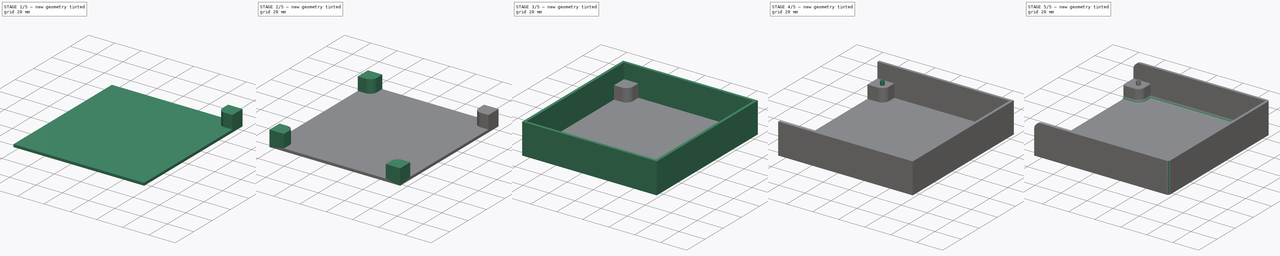
[diagram: build sequence overview — one tinted view per stage of 5, left to right]
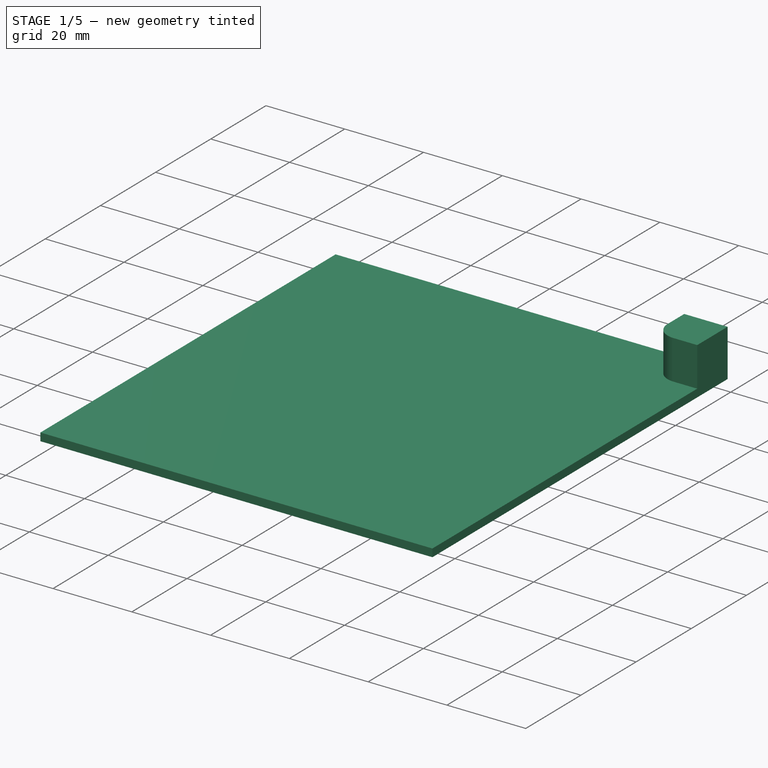
[diagram: stage 1 of 5 — iso view after this stage's code; geometry added in this stage tinted green]
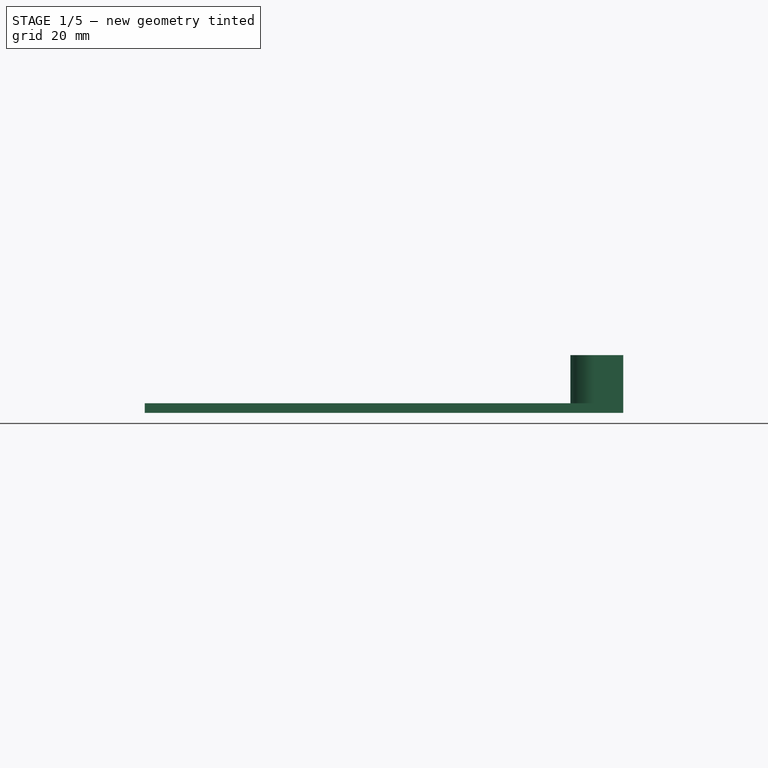
[diagram: stage 1 of 5 — front view after this stage's code; geometry added in this stage tinted green]
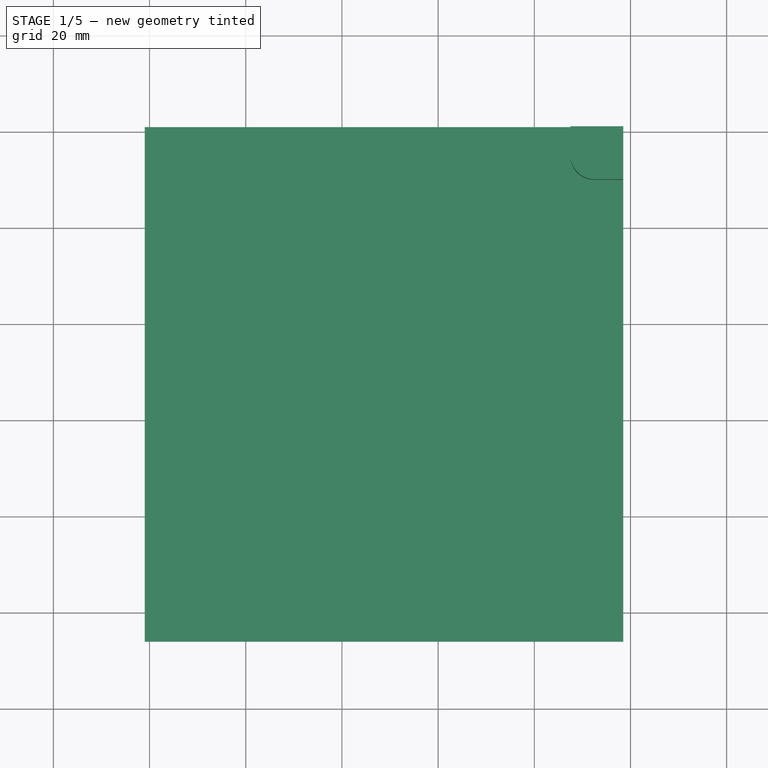
[diagram: stage 1 of 5 — top view after this stage's code; geometry added in this stage tinted green]
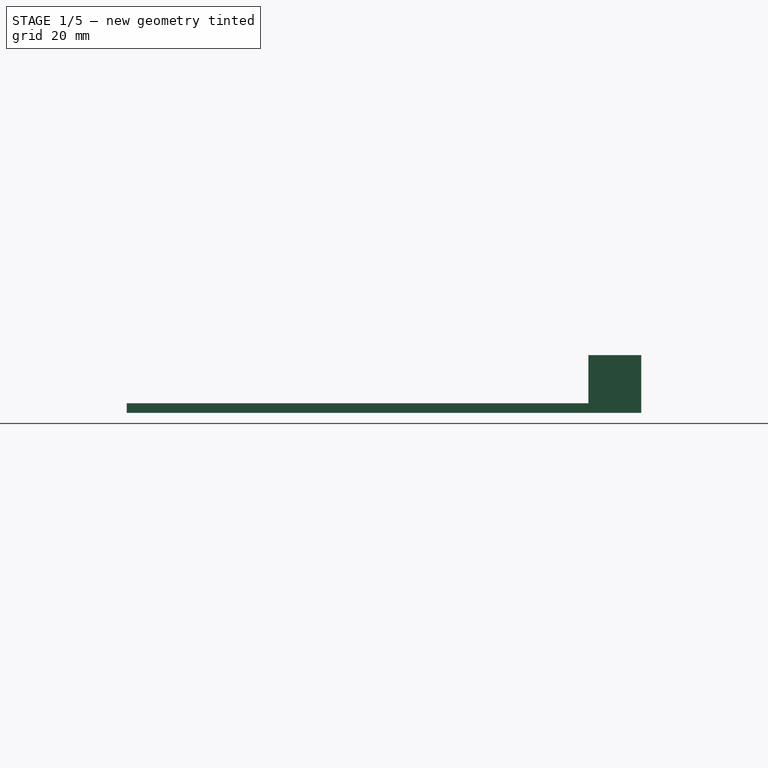
[diagram: stage 1 of 5 — right view after this stage's code; geometry added in this stage tinted green]
FCSTD DOCUMENT  (FreeCAD 1.0RUnknown)
Label: bed
License: All rights reserved
LicenseURL: http://en.wikipedia.org/wiki/All_rights_reserved
objects: Sketcher::SketchObject×7, PartDesign::Pad×5, PartDesign::Mirrored×5, PartDesign::Plane×3, PartDesign::Pocket×3, PartDesign::Fillet×3, PartDesign::Body×2, PartDesign::PolarPattern×2, PartDesign::SubShapeBinder×1, PartDesign::Line×1
note: 68 computed .brp shape members not serialized (recipe doc carries the construction recipe); baked Part::Feature solids carry a one-line shape summary decoded from their .brp

FEATURE [Sketcher::SketchObject] Sketch
  ArcFitTolerance = 1e-06
  AttachmentSupport = -> [XY_Plane]
  FullyConstrained = true
  MakeInternals = false
  MapMode = 5
  sketch-geometry (16):
    g0: LineSegment StartX=0 StartY=0 StartZ=0 EndX=0 EndY=-105 EndZ=0
    g1: LineSegment StartX=0 StartY=-105 StartZ=0 EndX=97.5 EndY=-105 EndZ=0
    g2: LineSegment StartX=97.5 StartY=-105 StartZ=0 EndX=97.5 EndY=0 EndZ=0
    g3: LineSegment StartX=97.5 StartY=0 StartZ=0 EndX=0 EndY=0 EndZ=0
    g4: Circle CenterX=5 CenterY=-5 CenterZ=0 NormalX=0 NormalY=0 NormalZ=1 AngleXU=0 Radius=1.6
    g5: Circle CenterX=92.5 CenterY=-5 CenterZ=0 NormalX=0 NormalY=0 NormalZ=1 AngleXU=0 Radius=1.6
    g6: Circle CenterX=92.5 CenterY=-100 CenterZ=0 NormalX=0 NormalY=0 NormalZ=1 AngleXU=0 Radius=1.6
    g7: Circle CenterX=5 CenterY=-100 CenterZ=0 NormalX=0 NormalY=0 NormalZ=1 AngleXU=0 Radius=1.6
    g8: LineSegment [constr] StartX=5 StartY=-5 StartZ=0 EndX=5 EndY=0 EndZ=0
    g9: LineSegment [constr] StartX=0 StartY=-5 StartZ=0 EndX=5 EndY=-5 EndZ=0
    g10: LineSegment [constr] StartX=92.5 StartY=-5 StartZ=0 EndX=92.5 EndY=0 EndZ=0
    g11: LineSegment [constr] StartX=92.5 StartY=-5 StartZ=0 EndX=97.5 EndY=-5 EndZ=0
    g12: LineSegment [constr] StartX=92.5 StartY=-100 StartZ=0 EndX=97.5 EndY=-100 EndZ=0
    g13: LineSegment [constr] StartX=92.5 StartY=-100 StartZ=0 EndX=92.5 EndY=-105 EndZ=0
    g14: LineSegment [constr] StartX=5 StartY=-100 StartZ=0 EndX=5 EndY=-105 EndZ=0
    g15: LineSegment [constr] StartX=5 StartY=-100 StartZ=0 EndX=0 EndY=-100 EndZ=0
  constraints (47):
    c: Coincident(g0,g1)
    c: Coincident(g1,g2)
    c: Coincident(g2,g3)
    c: Coincident(g3,g0)
    c: Vertical(g0)
    c: Vertical(g2)
    c: Horizontal(g1)
    c: Horizontal(g3)
    c: Distance(g0,g2) = 97.5
    c: Distance(g1,g3) = 105
    c: Coincident(g0,g-1)
    c: Diameter(g4) = 3.2
    c: DistanceX(g4) = 5
    c: Equal(g4,g5)
    c: Equal(g5,g6)
    c: Equal(g6,g7)
    c: Coincident(g8,g4)
    c: PointOnObject(g8,g3)
    c: Vertical(g8)
    c: PointOnObject(g9,g0)
    c: Coincident(g9,g4)
    c: Horizontal(g9)
    c: Coincident(g10,g5)
    c: PointOnObject(g10,g3)
    c: Vertical(g10)
    c: Coincident(g11,g5)
    c: PointOnObject(g11,g2)
    c: Horizontal(g11)
    c: Coincident(g12,g6)
    c: PointOnObject(g12,g2)
    c: Horizontal(g12)
    c: Coincident(g13,g6)
    c: PointOnObject(g13,g1)
    c: Vertical(g13)
    c: Coincident(g14,g7)
    c: PointOnObject(g14,g1)
    c: Vertical(g14)
    c: Coincident(g15,g7)
    c: PointOnObject(g15,g0)
    c: Horizontal(g15)
    c: Equal(g9,g8)
    c: Equal(g8,g10)
    c: Equal(g10,g11)
    c: Equal(g11,g12)
    c: Equal(g12,g13)
    c: Equal(g13,g14)
    c: Equal(g14,g15)
FEATURE [PartDesign::Pad] Pad
  Direction = (0,0,1)
  Length = 1.6
  Length2 = 10
  Profile = -> Sketch
  ReferenceAxis = -> Sketch [N_Axis]
  Refine = true
  Suppressed = false
  Type = 0
FEATURE [PartDesign::Body] Body  label="Board"
  AllowCompound = false
  Group = -> [Sketch,Pad]
  Origin = -> Origin
  Tip = -> Pad
FEATURE [PartDesign::SubShapeBinder] Binder
  BindCopyOnChange = 0
  BindMode = 0
  ClaimChildren = false
  Context = -> Body001 [Binder.]
  Fuse = false
  MakeFace = true
  OffsetFill = false
  OffsetIntersection = false
  OffsetJoinType = 0
  OffsetOpenResult = false
  PartialLoad = false
  Refine = true
  Relative = true
  Support = -> [Body]
  _Version = 2
FEATURE [Sketcher::SketchObject] Sketch001
  ArcFitTolerance = 1e-06
  AttachmentSupport = -> [XY_Plane001]
  ExternalGeometry = -> [Binder]
  FullyConstrained = true
  MakeInternals = false
  MapMode = 5
  sketch-geometry (7):
    g0: ArcOfCircle CenterX=92.5 CenterY=-5 CenterZ=0 NormalX=0 NormalY=0 NormalZ=1 AngleXU=0 Radius=5 StartAngle=3.14159 EndAngle=4.71239
    g1: LineSegment StartX=87.5 StartY=-5 StartZ=0 EndX=87.5 EndY=1 EndZ=0
    g2: LineSegment StartX=92.5 StartY=-10 StartZ=0 EndX=98.5 EndY=-10 EndZ=0
    g3: LineSegment StartX=98.5 StartY=-10 StartZ=0 EndX=98.5 EndY=1 EndZ=0
    g4: LineSegment StartX=98.5 StartY=1 StartZ=0 EndX=87.5 EndY=1 EndZ=0
    g5: LineSegment [constr] StartX=93 StartY=1 StartZ=0 EndX=93 EndY=0 EndZ=0
    g6: LineSegment [constr] StartX=97.5 StartY=-4.5 StartZ=0 EndX=98.5 EndY=-4.5 EndZ=0
  constraints (19):
    c: Coincident(g0,g-7)
    c: Vertical(g1)
    c: Horizontal(g2)
    c: Coincident(g3,g2)
    c: Vertical(g3)
    c: Coincident(g4,g3)
    c: Coincident(g4,g1)
    c: Horizontal(g4)
    c: Tangent(g1,g0) = 1.5708
    c: Tangent(g2,g0) = -1.5708
    c: Symmetric(g4,g4,g5)
    c: PointOnObject(g5,g-1)
    c: Vertical(g5)
    c: PointOnObject(g6,g-3)
    c: Horizontal(g6)
    c: Symmetric(g3,g2,g6)
    c: DistanceY(g5,g5) = 1
    c: Radius(g0) = 5
    c: Equal(g5,g6)
FEATURE [PartDesign::Pad] Pad001  label="foot 1"
  Direction = (0,0,1)
  Length = 10
  Length2 = 10
  Profile = -> Sketch001
  ReferenceAxis = -> Sketch001 [N_Axis]
  Refine = true
  Reversed = true
  Suppressed = false
  Type = 0
FEATURE [PartDesign::Line] DatumLine  label="inertia Z"
  AttacherType = Attacher::AttachEngineLine
  AttachmentSupport = -> [Binder]
  Length = 20
  MapMode = 42
  Placement = pos=(48.75,-52.5,0) rot=(0,0,1;0rad)
  ResizeMode = 0
FEATURE [PartDesign::Plane] DatumPlane  label="inertia YZ"
  AttachmentOffset = pos=(0,0,0) rot=(0,1,0;1.5708rad)
  AttachmentSupport = -> [DatumLine]
  Length = 66.3095
  MapMode = 2
  Placement = pos=(48.75,-52.5,0) rot=(0,1,0;1.5708rad)
  ResizeMode = 0
  Width = 149.31
FEATURE [PartDesign::Plane] DatumPlane001  label="inertia XZ"
  AttachmentOffset = pos=(0,0,0) rot=(1,0,0;1.5708rad)
  AttachmentSupport = -> [DatumLine]
  Length = 141.343
  MapMode = 2
  Placement = pos=(48.75,-52.5,0) rot=(1,0,0;1.5708rad)
  ResizeMode = 0
  Width = 65.843
FEATURE [PartDesign::Mirrored] Mirrored
  BaseFeature = -> Pad001
  MirrorPlane = -> DatumPlane001
  Originals = -> [Pad001]
  Refine = true
  Suppressed = false
  TransformMode = 0
FEATURE [Sketcher::SketchObject] Sketch002
  ArcFitTolerance = 1e-06
  AttachmentSupport = -> [Mirrored]
  ExternalGeometry = -> [Mirrored,Binder]
  FullyConstrained = true
  MakeInternals = false
  MapMode = 5
  Placement = pos=(0,0,-10) rot=(1,0,0;3.14159rad)
  sketch-geometry (7):
    g0: LineSegment StartX=98.5 StartY=-1 StartZ=0 EndX=98.5 EndY=106 EndZ=0
    g1: LineSegment StartX=98.5 StartY=106 StartZ=0 EndX=-1 EndY=106 EndZ=0
    g2: LineSegment StartX=-1 StartY=106 StartZ=0 EndX=-1 EndY=-1 EndZ=0
    g3: LineSegment StartX=-1 StartY=-1 StartZ=0 EndX=98.5 EndY=-1 EndZ=0
    g4: LineSegment [constr] StartX=93 StartY=-1 StartZ=0 EndX=93 EndY=0 EndZ=0
    g5: LineSegment [constr] StartX=0 StartY=105 StartZ=0 EndX=0 EndY=106 EndZ=0
    g6: LineSegment [constr] StartX=0 StartY=105 StartZ=0 EndX=-1 EndY=105 EndZ=0
  constraints (20):
    c: Coincident(g0,g1)
    c: Coincident(g1,g2)
    c: Coincident(g2,g3)
    c: Coincident(g3,g0)
    c: Vertical(g0)
    c: Vertical(g2)
    c: Horizontal(g1)
    c: Horizontal(g3)
    c: Coincident(g0,g-4)
    c: PointOnObject(g4,g-1)
    c: Vertical(g4)
    c: Symmetric(g-4,g0,g4)
    c: Coincident(g5,g-5)
    c: PointOnObject(g5,g1)
    c: Coincident(g6,g5)
    c: PointOnObject(g6,g2)
    c: Horizontal(g6)
    c: Vertical(g5)
    c: Equal(g5,g6)
    c: Equal(g6,g4)
FEATURE [PartDesign::Pad] Pad002  label="base"
  BaseFeature = -> Mirrored
  Direction = (0,0,-1)
  Length = 2
  Length2 = 10
  Profile = -> Sketch002
  ReferenceAxis = -> Sketch002 [N_Axis]
  Refine = true
  Suppressed = false
  Type = 0
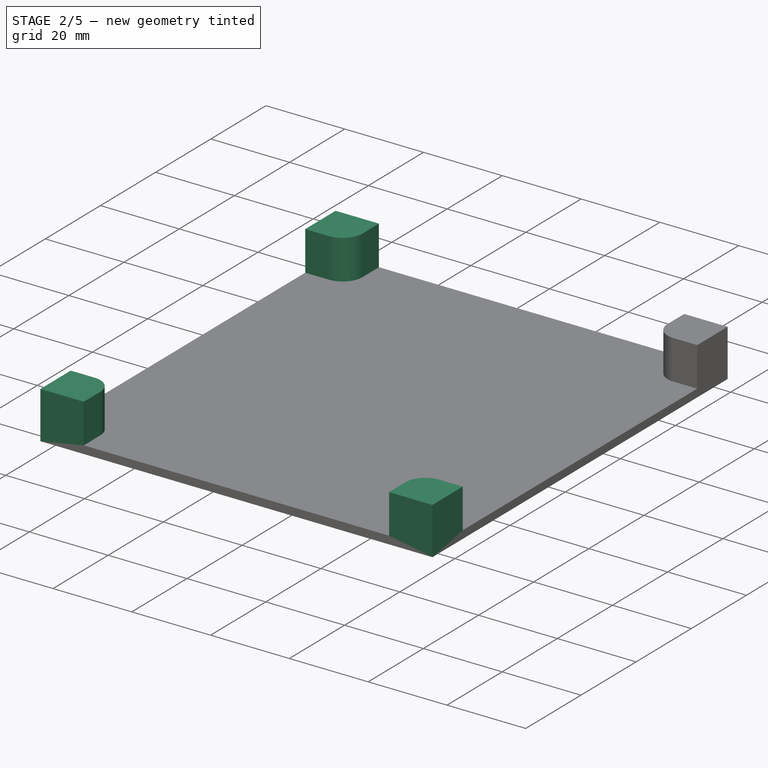
[diagram: stage 2 of 5 — iso view after this stage's code; geometry added in this stage tinted green]
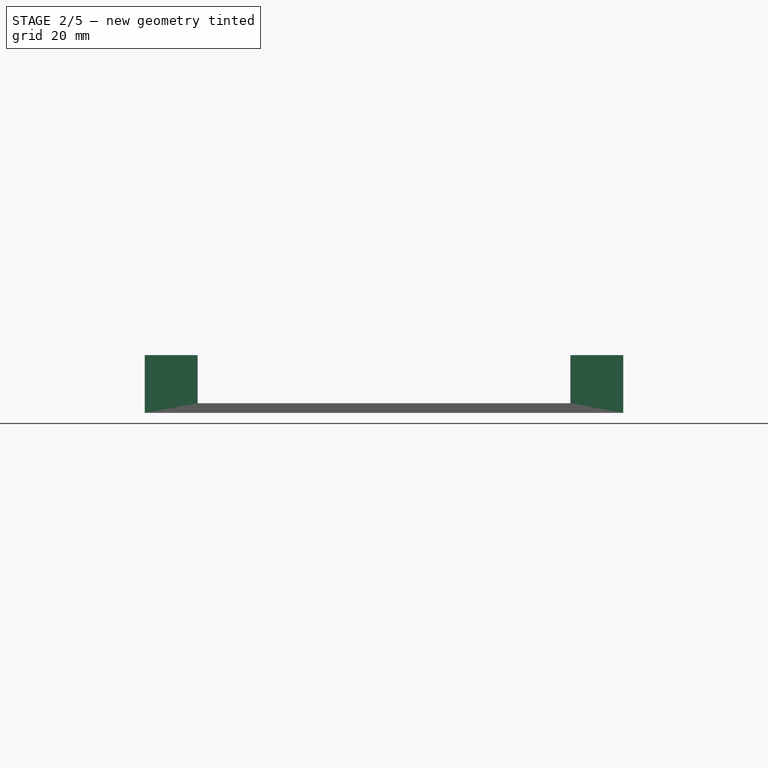
[diagram: stage 2 of 5 — front view after this stage's code; geometry added in this stage tinted green]
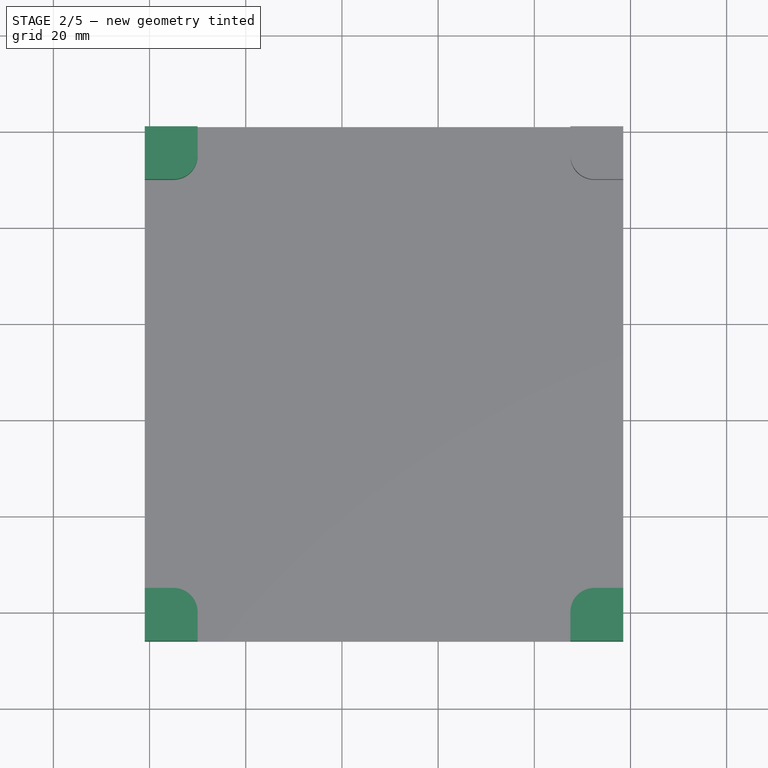
[diagram: stage 2 of 5 — top view after this stage's code; geometry added in this stage tinted green]
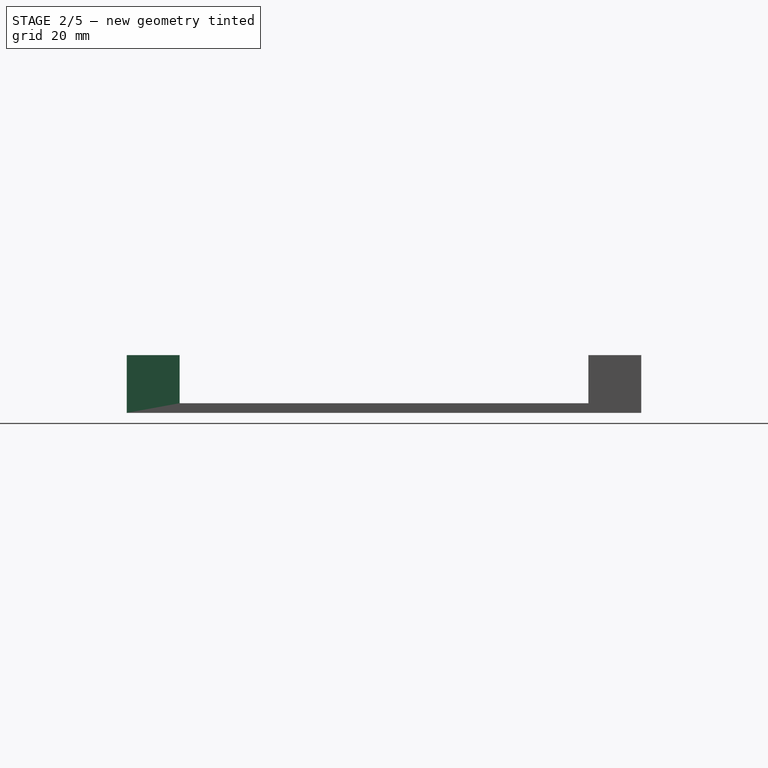
[diagram: stage 2 of 5 — right view after this stage's code; geometry added in this stage tinted green]
FEATURE [PartDesign::Mirrored] Mirrored001  label="foot 2"
  BaseFeature = -> Pad002
  MirrorPlane = -> DatumPlane001
  Originals = -> [Pad001]
  Refine = true
  Suppressed = false
  TransformMode = 0
FEATURE [PartDesign::PolarPattern] PolarPattern  label="foot 3"
  Angle = 360
  Axis = -> DatumLine
  BaseFeature = -> Mirrored001
  Mode = 0
  Occurrences = 2
  Offset = 120
  Originals = -> [Pad001]
  Refine = true
  Suppressed = false
  TransformMode = 0
FEATURE [PartDesign::Mirrored] Mirrored002  label="foot 4"
  BaseFeature = -> PolarPattern
  MirrorPlane = -> DatumPlane
  Originals = -> [Pad001]
  Refine = true
  Suppressed = false
  TransformMode = 0
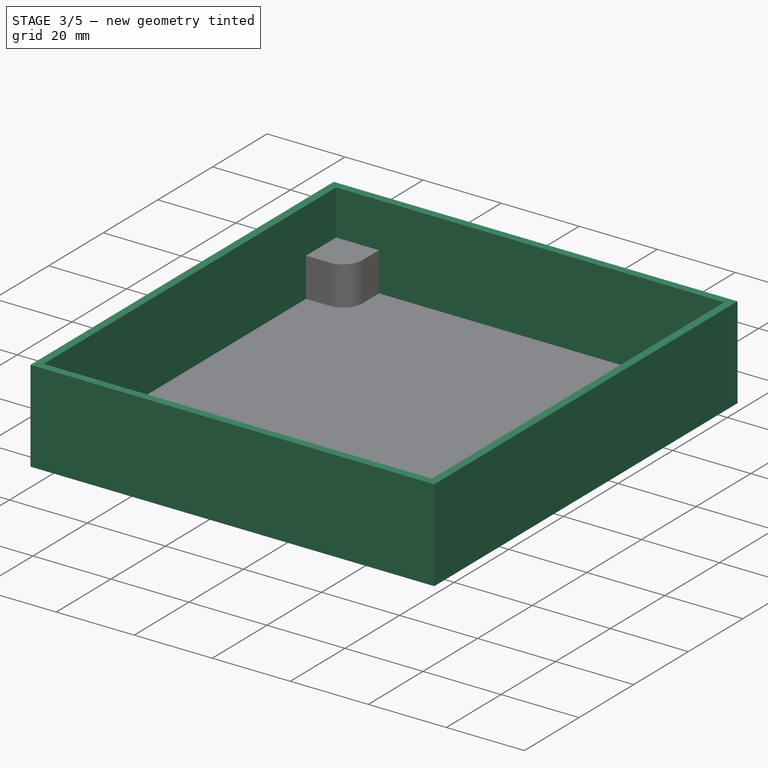
[diagram: stage 3 of 5 — iso view after this stage's code; geometry added in this stage tinted green]
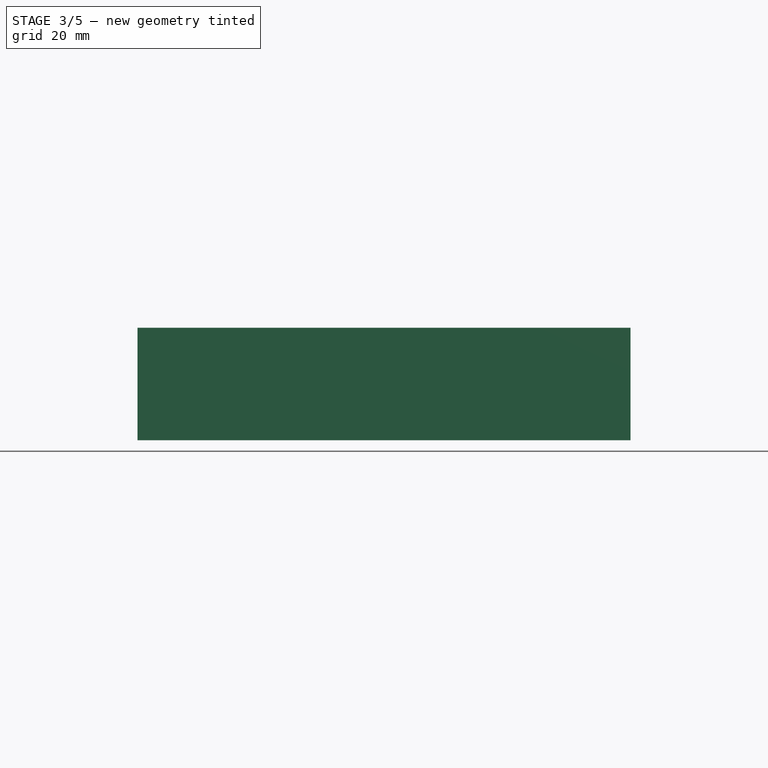
[diagram: stage 3 of 5 — front view after this stage's code; geometry added in this stage tinted green]
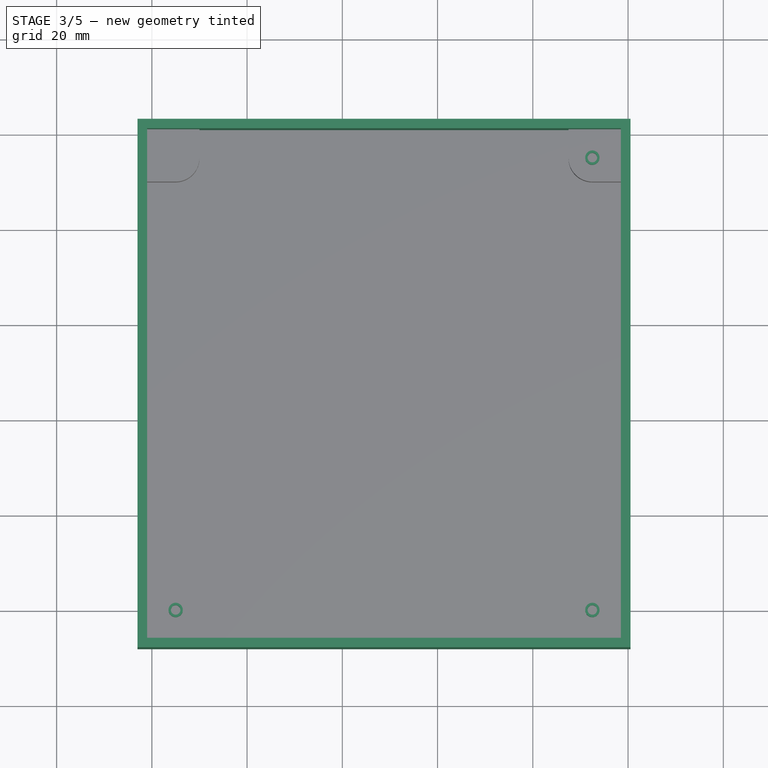
[diagram: stage 3 of 5 — top view after this stage's code; geometry added in this stage tinted green]
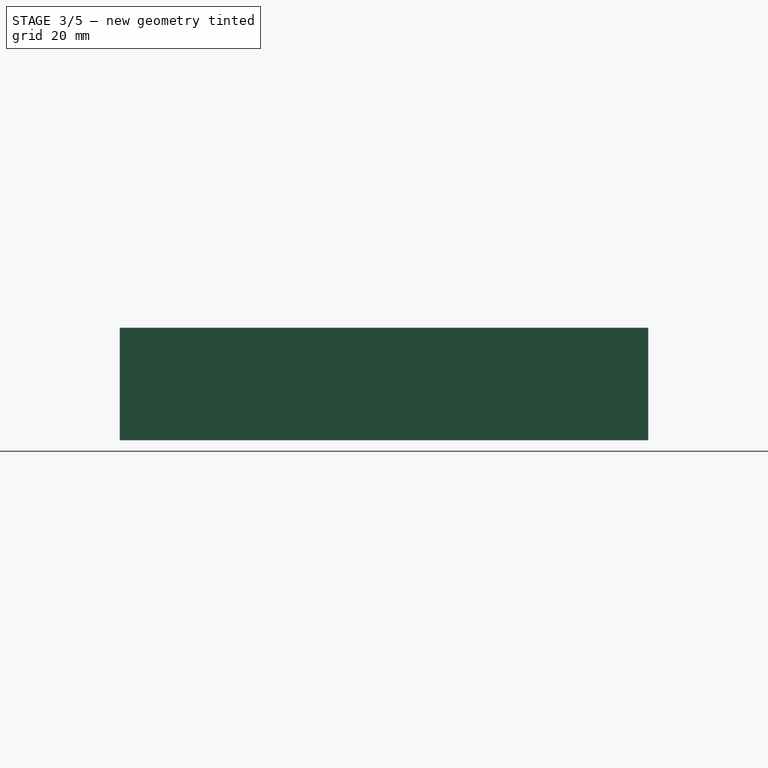
[diagram: stage 3 of 5 — right view after this stage's code; geometry added in this stage tinted green]
FEATURE [Sketcher::SketchObject] Sketch003
  ArcFitTolerance = 1e-06
  AttachmentSupport = -> [Mirrored002]
  ExternalGeometry = -> [Binder]
  FullyConstrained = true
  MakeInternals = false
  MapMode = 5
  sketch-geometry (3):
    g0: Circle CenterX=92.5 CenterY=-5 CenterZ=0 NormalX=0 NormalY=0 NormalZ=1 AngleXU=0 Radius=1
    g1: Circle CenterX=92.5 CenterY=-5 CenterZ=0 NormalX=0 NormalY=0 NormalZ=1 AngleXU=0 Radius=1.5
    g2: LineSegment [constr] StartX=92.5 StartY=-4 StartZ=0 EndX=92.5 EndY=-3.5 EndZ=0
  constraints (8):
    c: Coincident(g0,g-3)
    c: Coincident(g1,g0)
    c: PointOnObject(g2,g0)
    c: PointOnObject(g2,g1)
    c: Vertical(g2,g2)
    c: Vertical(g2,g0)
    c: Diameter(g1) = 3
    c: DistanceY(g2,g2) = 0.5
FEATURE [PartDesign::Pad] Pad003  label="dowel 1"
  BaseFeature = -> Mirrored002
  Direction = (0,0,1)
  Length = 3
  Length2 = 10
  Profile = -> Sketch003
  ReferenceAxis = -> Sketch003 [N_Axis]
  Refine = true
  Suppressed = false
  Type = 0
FEATURE [PartDesign::Mirrored] Mirrored003  label="dowel 2"
  BaseFeature = -> Pad003
  MirrorPlane = -> DatumPlane001
  Originals = -> [Pad003]
  Refine = true
  Suppressed = false
  TransformMode = 0
FEATURE [PartDesign::PolarPattern] PolarPattern001  label="dowel 3"
  Angle = 360
  Axis = -> DatumLine
  BaseFeature = -> Mirrored003
  Mode = 0
  Occurrences = 2
  Offset = 120
  Originals = -> [Pad003]
  Refine = true
  Suppressed = false
  TransformMode = 0
FEATURE [PartDesign::Plane] DatumPlane002  label="top of walls"
  AttachmentOffset = pos=(0,0,10) rot=(0,0,1;0rad)
  AttachmentSupport = -> [Binder]
  Length = 151.339
  MapMode = 5
  Placement = pos=(0,0,11.6) rot=(0,0,1;0rad)
  ResizeMode = 0
  Width = 158.839
FEATURE [Sketcher::SketchObject] Sketch004
  ArcFitTolerance = 1e-06
  AttachmentSupport = -> [PolarPattern001]
  ExternalGeometry = -> [PolarPattern001,DatumPlane,DatumPlane001]
  FullyConstrained = true
  MakeInternals = false
  MapMode = 5
  Placement = pos=(0,0,-12) rot=(1,0,0;3.14159rad)
  sketch-geometry (8):
    g0: LineSegment StartX=-3 StartY=108 StartZ=0 EndX=-3 EndY=-3 EndZ=0
    g1: LineSegment StartX=-3 StartY=-3 StartZ=0 EndX=100.5 EndY=-3 EndZ=0
    g2: LineSegment StartX=100.5 StartY=-3 StartZ=0 EndX=100.5 EndY=108 EndZ=0
    g3: LineSegment StartX=100.5 StartY=108 StartZ=0 EndX=-3 EndY=108 EndZ=0
    g4: LineSegment StartX=-1 StartY=106 StartZ=0 EndX=-1 EndY=-1 EndZ=0
    g5: LineSegment StartX=-1 StartY=-1 StartZ=0 EndX=98.5 EndY=-1 EndZ=0
    g6: LineSegment StartX=98.5 StartY=-1 StartZ=0 EndX=98.5 EndY=106 EndZ=0
    g7: LineSegment StartX=98.5 StartY=106 StartZ=0 EndX=-1 EndY=106 EndZ=0
  constraints (20):
    c: Coincident(g0,g1)
    c: Coincident(g1,g2)
    c: Coincident(g2,g3)
    c: Coincident(g3,g0)
    c: Vertical(g2)
    c: Horizontal(g1)
    c: Coincident(g4,g5)
    c: Coincident(g5,g6)
    c: Coincident(g6,g7)
    c: Coincident(g7,g4)
    c: Vertical(g4)
    c: Vertical(g6)
    c: Horizontal(g5)
    c: Horizontal(g7)
    c: Coincident(g4,g-3)
    c: Coincident(g5,g-4)
    c: Symmetric(g0,g2,g-5)
    c: Symmetric(g0,g0,g-6)
    c: DistanceY(g4,g0) = 2
    c: DistanceX(g0,g4) = 2
FEATURE [PartDesign::Pad] Pad004  label="walls"
  BaseFeature = -> PolarPattern001
  Direction = (0,0,-1)
  Length = 10
  Length2 = 10
  Profile = -> Sketch004
  ReferenceAxis = -> Sketch004 [N_Axis]
  Refine = true
  Suppressed = false
  Type = 3
  UpToFace = -> DatumPlane002 [Plane]
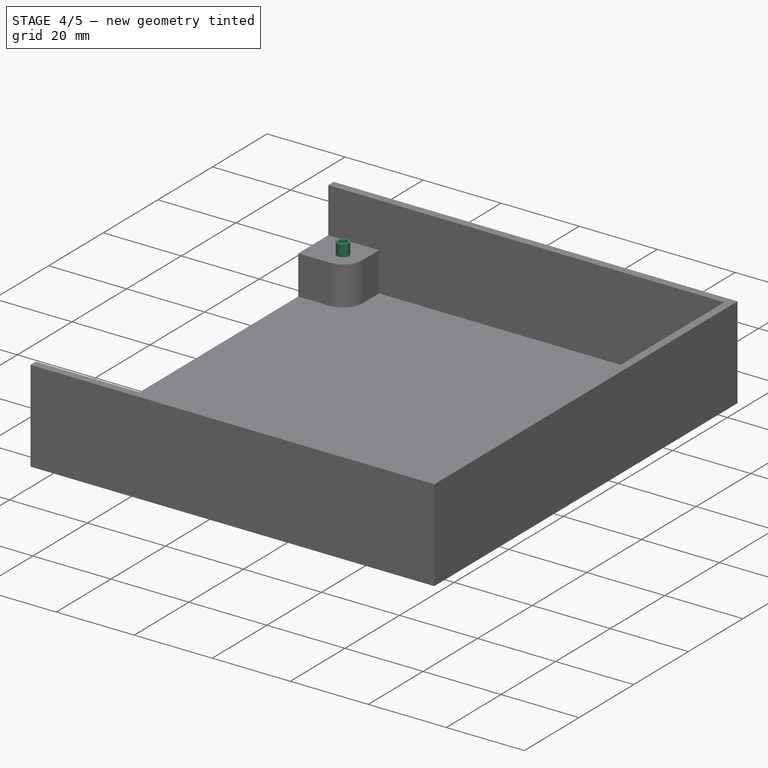
[diagram: stage 4 of 5 — iso view after this stage's code; geometry added in this stage tinted green]
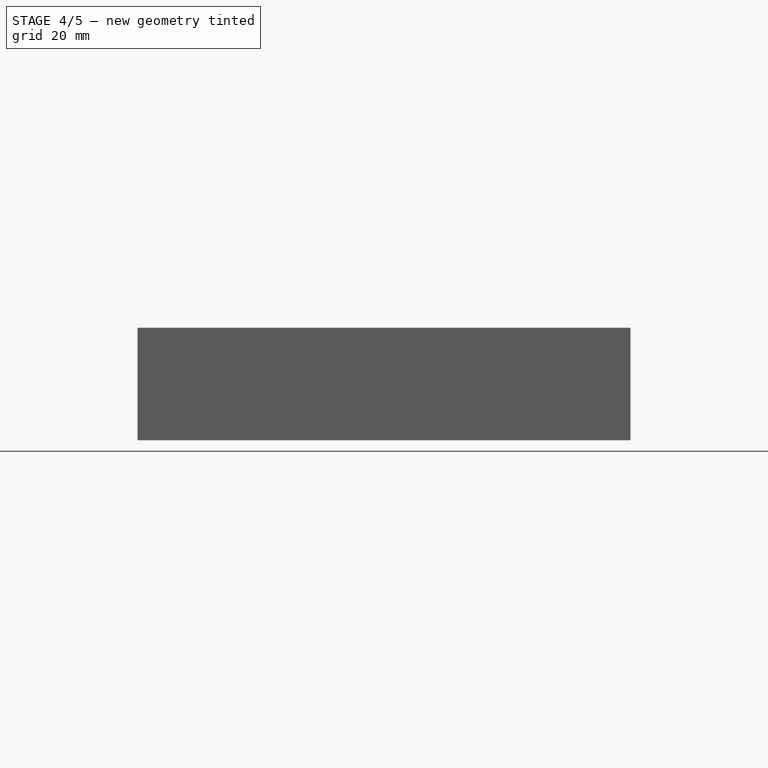
[diagram: stage 4 of 5 — front view after this stage's code; geometry added in this stage tinted green]
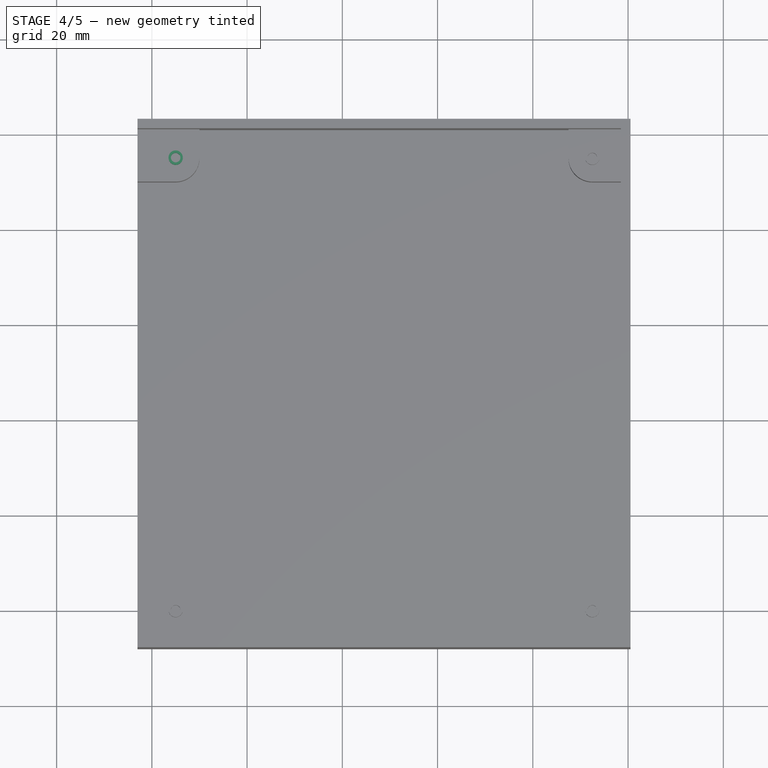
[diagram: stage 4 of 5 — top view after this stage's code; geometry added in this stage tinted green]
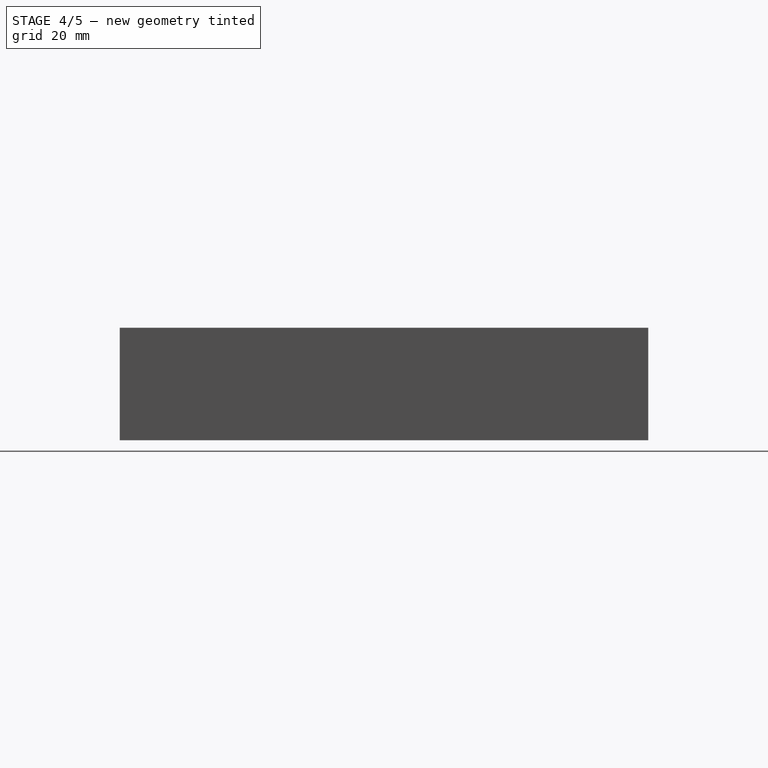
[diagram: stage 4 of 5 — right view after this stage's code; geometry added in this stage tinted green]
FEATURE [PartDesign::Mirrored] Mirrored004  label="dowel 4"
  BaseFeature = -> Pad004
  MirrorPlane = -> DatumPlane
  Originals = -> [Pad003]
  Refine = true
  Suppressed = false
  TransformMode = 0
FEATURE [Sketcher::SketchObject] Sketch005
  ArcFitTolerance = 1e-06
  AttachmentSupport = -> [Mirrored004]
  ExternalGeometry = -> [Mirrored004]
  FullyConstrained = true
  MakeInternals = false
  MapMode = 5
  Placement = pos=(0,0,11.6) rot=(0,0,1;0rad)
  sketch-geometry (4):
    g0: LineSegment StartX=-1 StartY=1 StartZ=0 EndX=-3 EndY=1 EndZ=0
    g1: LineSegment StartX=-3 StartY=1 StartZ=0 EndX=-3 EndY=-106 EndZ=0
    g2: LineSegment StartX=-3 StartY=-106 StartZ=0 EndX=-1 EndY=-106 EndZ=0
    g3: LineSegment StartX=-1 StartY=-106 StartZ=0 EndX=-1 EndY=1 EndZ=0
  constraints (10):
    c: Coincident(g0,g1)
    c: Coincident(g1,g2)
    c: Coincident(g2,g3)
    c: Coincident(g3,g0)
    c: Horizontal(g0)
    c: Horizontal(g2)
    c: Vertical(g1)
    c: Coincident(g0,g-4)
    c: Coincident(g2,g-4)
    c: PointOnObject(g1,g-3)
FEATURE [PartDesign::Pocket] Pocket  label="opening 1"
  BaseFeature = -> Mirrored004
  Direction = (0,0,-1)
  Length = 0
  Length2 = 5
  Profile = -> Sketch005
  ReferenceAxis = -> Sketch005 [N_Axis]
  Refine = true
  Suppressed = false
  Type = 3
  UpToFace = -> Mirrored004 [Face20]
FEATURE [PartDesign::Pocket] Pocket001  label="opening 2"
  BaseFeature = -> Pocket
  Direction = (-1,0,0)
  Length = 0
  Length2 = 5
  Profile = -> Pocket [Face14]
  Refine = true
  Suppressed = false
  Type = 3
  UpToFace = -> Pocket [Face21]
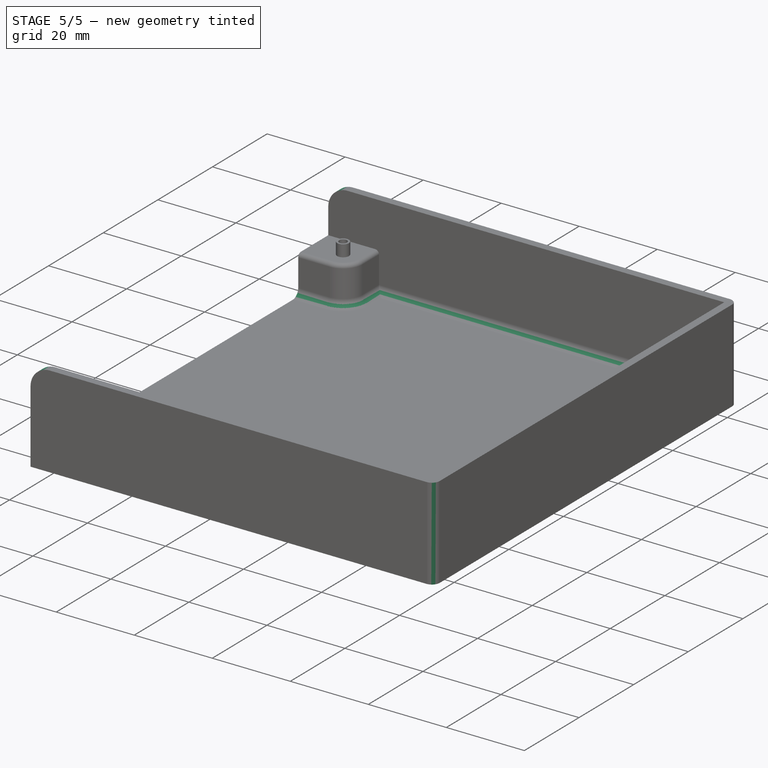
[diagram: stage 5 of 5 — iso view after this stage's code; geometry added in this stage tinted green]
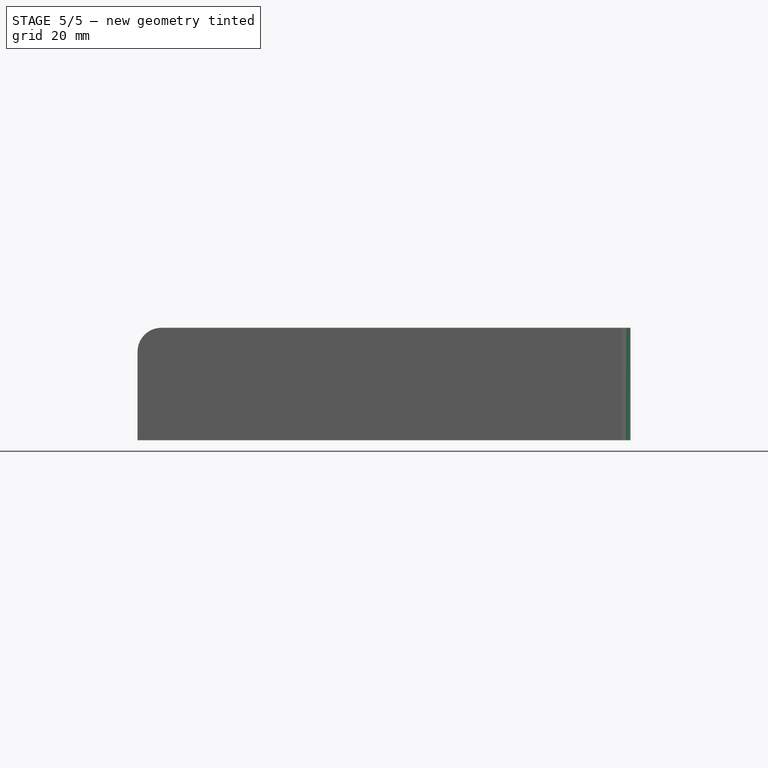
[diagram: stage 5 of 5 — front view after this stage's code; geometry added in this stage tinted green]
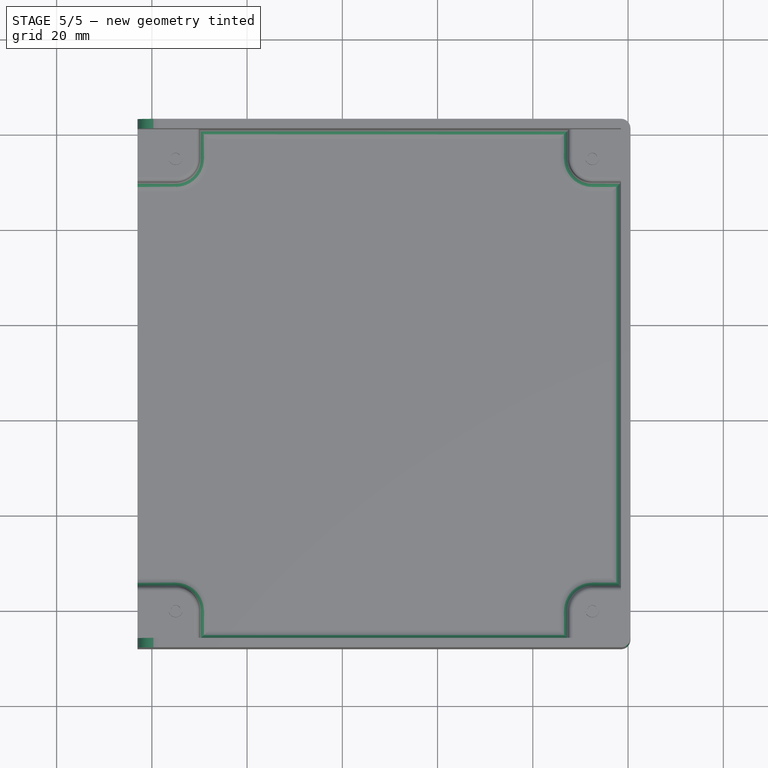
[diagram: stage 5 of 5 — top view after this stage's code; geometry added in this stage tinted green]
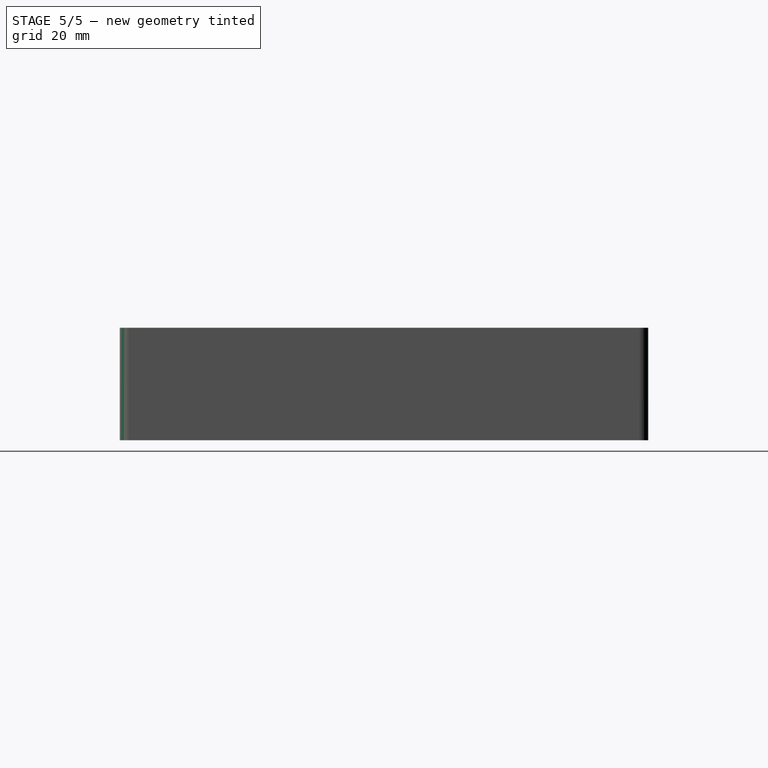
[diagram: stage 5 of 5 — right view after this stage's code; geometry added in this stage tinted green]
FEATURE [Sketcher::SketchObject] Sketch006
  ArcFitTolerance = 1e-06
  AttachmentSupport = -> [Pocket001]
  ExternalGeometry = -> [Pocket001]
  FullyConstrained = true
  MakeInternals = false
  MapMode = 5
  Placement = pos=(0,-108,0) rot=(1,0,0;1.5708rad)
  sketch-geometry (3):
    g0: ArcOfCircle CenterX=2 CenterY=6.6 CenterZ=0 NormalX=0 NormalY=0 NormalZ=1 AngleXU=0 Radius=5 StartAngle=1.5708 EndAngle=3.14159
    g1: LineSegment StartX=2 StartY=11.6 StartZ=0 EndX=-3 EndY=11.6 EndZ=0
    g2: LineSegment StartX=-3 StartY=11.6 StartZ=0 EndX=-3 EndY=6.6 EndZ=0
  constraints (7):
    c: Tangent(g0,g-3) = -1.5708
    c: Tangent(g0,g-4) = 1.5708
    c: Coincident(g1,g0)
    c: Coincident(g1,g-4)
    c: Coincident(g2,g1)
    c: Coincident(g2,g0)
    c: DistanceY(g2,g2) = 5
FEATURE [PartDesign::Pocket] Pocket002  label="Fillet001"
  BaseFeature = -> Pocket001
  Direction = (0,1,-2e-16)
  Length = 5
  Length2 = 5
  Profile = -> Sketch006
  ReferenceAxis = -> Sketch006 [N_Axis]
  Refine = true
  Suppressed = false
  Type = 1
FEATURE [PartDesign::Fillet] Fillet
  Base = -> Pocket002 [Edge10,Edge4,Edge7,Edge18,Edge17,Edge16,Edge15,Edge14,Edge26,Edge25,Edge24,Edge23,Edge22,Edge21,Edge20]
  BaseFeature = -> Pocket002
  Radius = 2
  Refine = true
  SupportTransform = false
  Suppressed = false
  UseAllEdges = false
FEATURE [PartDesign::Fillet] Fillet001  label="Fillet002"
  Base = -> Fillet [Edge11,Edge3,Edge6,Edge55,Edge56,Edge57,Edge113,Edge114,Edge115,Edge97,Edge96,Edge93]
  BaseFeature = -> Fillet
  Radius = 1
  Refine = true
  SupportTransform = false
  Suppressed = false
  UseAllEdges = false
FEATURE [PartDesign::Fillet] Fillet002  label="Fillet003"
  Base = -> Fillet001 [Edge118,Edge108]
  BaseFeature = -> Fillet001
  Radius = 2
  Refine = true
  SupportTransform = false
  Suppressed = false
  UseAllEdges = false
FEATURE [PartDesign::Body] Body001  label="Bed"
  AllowCompound = false
  Group = -> [Sketch001,Binder,Pad001,DatumLine,DatumPlane,DatumPlane001,Mirrored,Sketch002,Pad002,Mirrored001,PolarPattern,Mirrored002,Sketch003,Pad003,Mirrored003,PolarPattern001,DatumPlane002,Sketch004,Pad004,Mirrored004,Sketch005,Pocket,Pocket001,Sketch006,Pocket002,Fillet,Fillet001,Fillet002]
  Origin = -> Origin001
  Tip = -> Fillet002
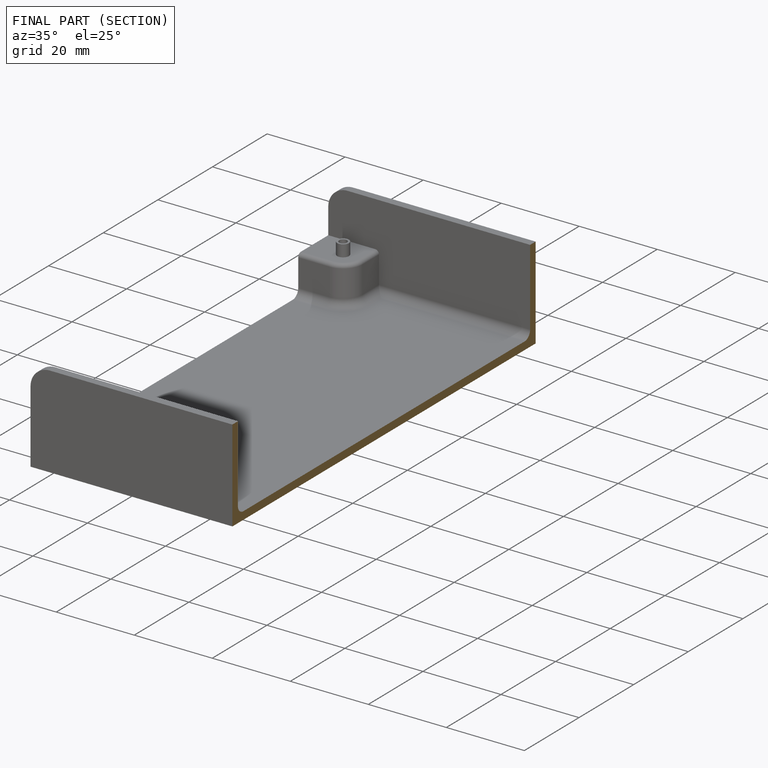
[diagram: finished part — half-section view (interior)]
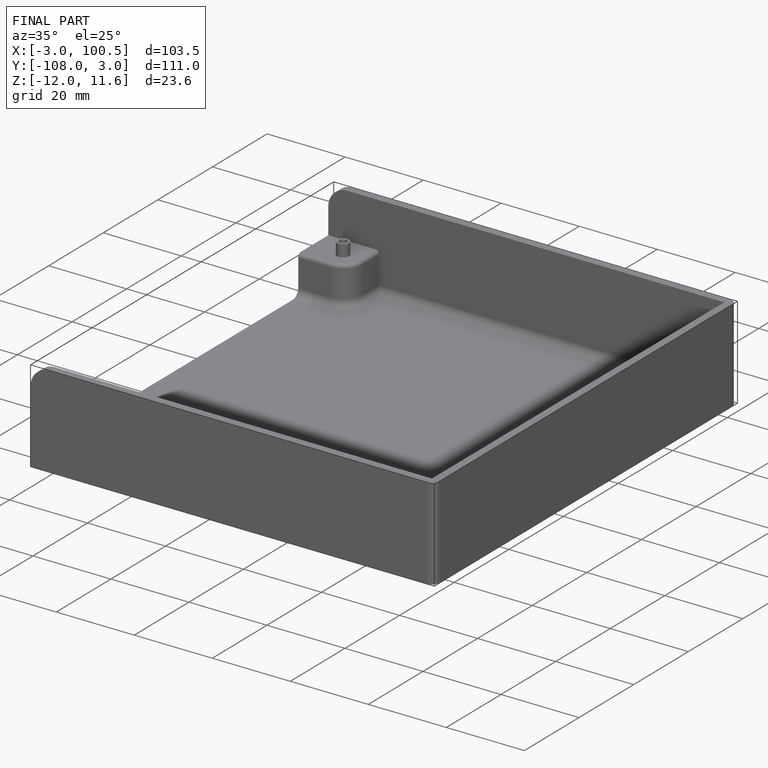
[diagram: finished part — iso view with bounding-box wireframe]
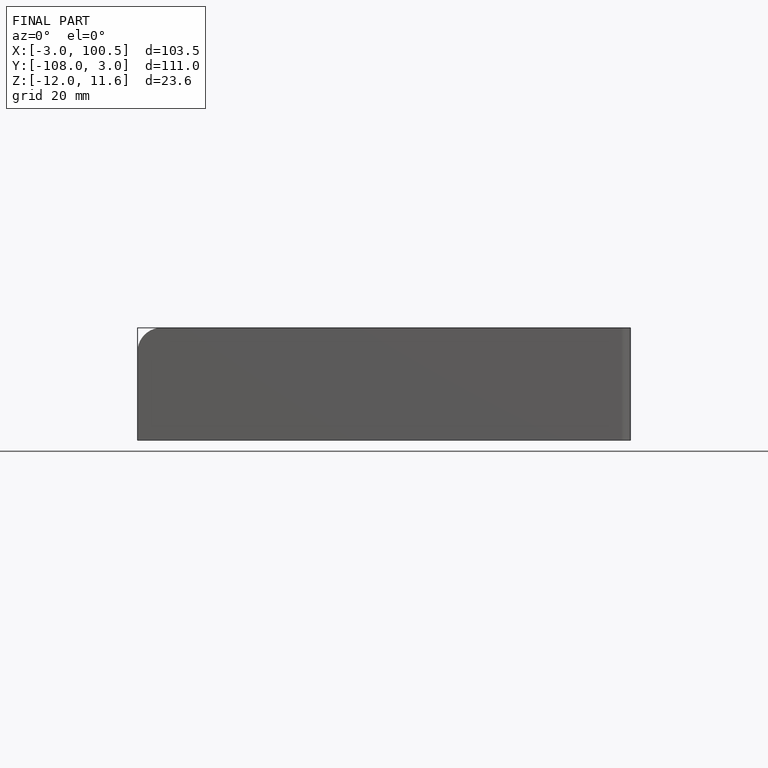
[diagram: finished part — front view with bounding-box wireframe]
